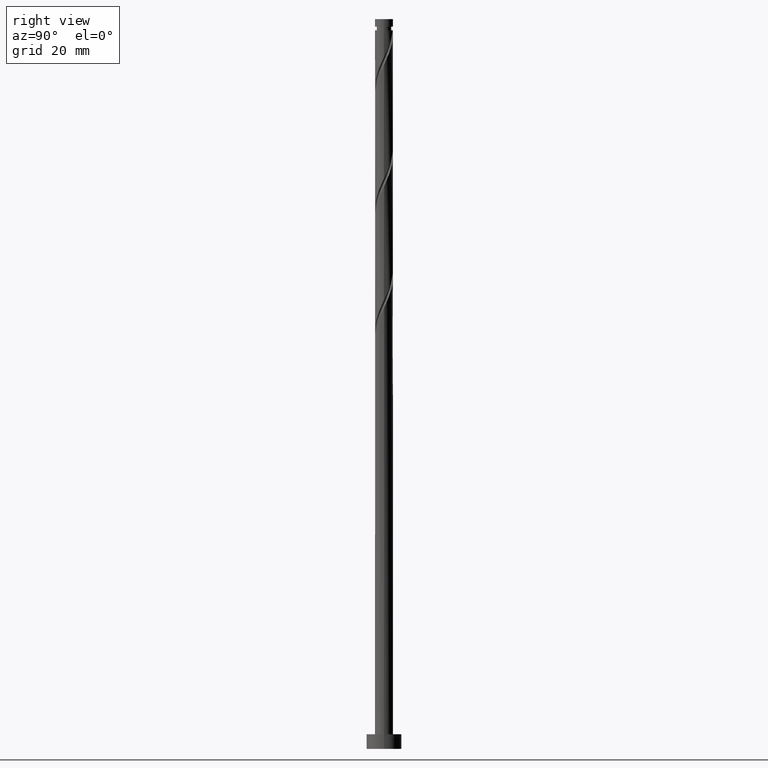
[diagram: clean part render]
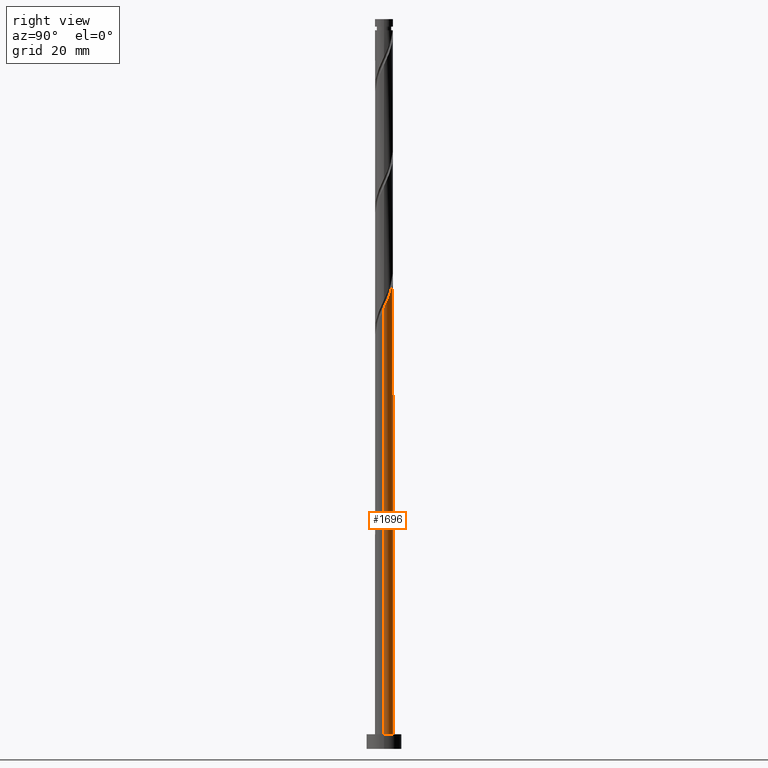
[diagram: same view with one face highlighted and labeled with its STEP entity id]
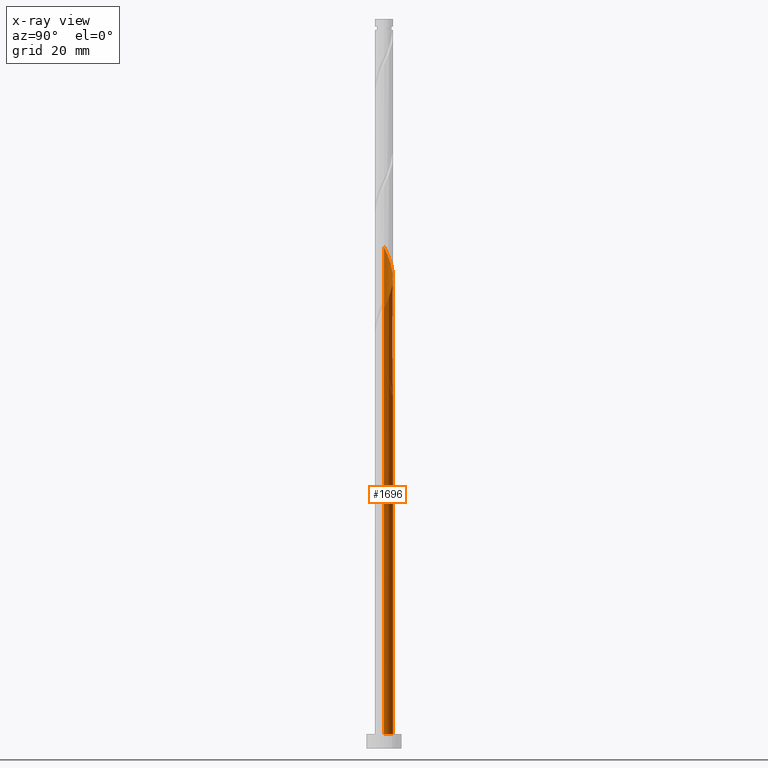
[diagram: x-ray of the same camera — body ghosted, the highlighted face saturated]
A machine part, right view. The second image highlights one B-rep face of the part: STEP entity #1696.
The next image is the same camera in x-ray: the body ghosted, the highlighted face saturated — about 0% of this face is hidden behind the body in this view.
In plain terms, the highlighted cylindrical surface (edge-blend (fillet) strip) has radius 3.1 mm, axis along (-0, -0, -1).
Its self-contained STEP definition (entity closure, byte-faithful):
#15 = EDGE_CURVE ( 'NONE', #1028, #1313, #1448, .T. ) ;
#47 = VECTOR ( 'NONE', #672, 1000.000000000000000 ) ;
#57 = FACE_OUTER_BOUND ( 'NONE', #1245, .T. ) ;
#63 = EDGE_CURVE ( 'NONE', #1028, #953, #497, .T. ) ;
#85 = ORIENTED_EDGE ( 'NONE', *, *, #63, .F. ) ;
#86 = CARTESIAN_POINT ( 'NONE',  ( -2.476317086136644807, 1.864900450133398113, 167.6549799938772765 ) ) ;
#91 = ORIENTED_EDGE ( 'NONE', *, *, #15, .T. ) ;
#93 = CARTESIAN_POINT ( 'NONE',  ( 3.100000000000005418, 1.600285423061656395E-15, 151.1026991436264382 ) ) ;
#102 = CARTESIAN_POINT ( 'NONE',  ( -1.666242669196358106, 2.641082819833930007, 123.5844671733644304 ) ) ;
#111 = AXIS2_PLACEMENT_3D ( 'NONE', #1374, #509, #226 ) ;
#122 = CARTESIAN_POINT ( 'NONE',  ( -0.1280745435953560274, 3.097353210611092145, 122.7831851220824149 ) ) ;
#133 = CARTESIAN_POINT ( 'NONE',  ( -1.227034829342569688, 2.871596876557147127, 125.1870312759285895 ) ) ;
#140 = AXIS2_PLACEMENT_3D ( 'NONE', #1662, #969, #1532 ) ;
#153 = CARTESIAN_POINT ( 'NONE',  ( -2.822669712321746793, 1.335746528729902183, 129.9947235836208677 ) ) ;
#166 = CARTESIAN_POINT ( 'NONE',  ( -3.100000000000004974, 0.2518949594648343115, 171.3963317396114405 ) ) ;
#172 = EDGE_CURVE ( 'NONE', #173, #673, #258, .T. ) ;
#173 = VERTEX_POINT ( 'NONE', #992 ) ;
#177 = CARTESIAN_POINT ( 'NONE',  ( 3.100000000000000089, 3.796405077356794918E-16, 250.0000000000000000 ) ) ;
#226 = DIRECTION ( 'NONE',  ( -1.000000000000000000, 0.000000000000000000, 0.000000000000000000 ) ) ;
#228 = CARTESIAN_POINT ( 'NONE',  ( -1.958059922082859172, 2.403331300826604178, 166.0524158913132169 ) ) ;
#235 = CARTESIAN_POINT ( 'NONE',  ( -0.9857721960353346136, 2.963095724305278011, 121.9819030708003567 ) ) ;
#239 = CARTESIAN_POINT ( 'NONE',  ( 1.552816185334434218, 2.683050855754219199, 158.0395953784926633 ) ) ;
#258 = CIRCLE ( 'NONE', #140, 3.100000000000000089 ) ;
#287 = CARTESIAN_POINT ( 'NONE',  ( -3.090207698699929395, 0.2462039376120597756, 132.3985697374670281 ) ) ;
#306 = EDGE_CURVE ( 'NONE', #1571, #1313, #438, .T. ) ;
#332 = CARTESIAN_POINT ( 'NONE',  ( 2.149790266979326070, 2.233473037222744040, 156.4370312759285753 ) ) ;
#337 = CYLINDRICAL_SURFACE ( 'NONE', #111, 3.100000000000000089 ) ;
#361 = ORIENTED_EDGE ( 'NONE', *, *, #306, .F. ) ;
#363 = CARTESIAN_POINT ( 'NONE',  ( -3.099999999999999201, 3.260394600256485574E-15, 132.9252095620768159 ) ) ;
#371 = VERTEX_POINT ( 'NONE', #1414 ) ;
#373 = CARTESIAN_POINT ( 'NONE',  ( -3.100000000000000089, 0.000000000000000000, 250.0000000000000000 ) ) ;
#380 = CARTESIAN_POINT ( 'NONE',  ( -3.100000000000005418, -1.057384854303355899E-14, 130.2693658102931238 ) ) ;
#385 = CARTESIAN_POINT ( 'NONE',  ( -0.2480122259768767212, 3.112904275694731826, 162.0460056349029117 ) ) ;
#402 = CARTESIAN_POINT ( 'NONE',  ( -1.326007432615846193, 2.802089272069603343, 164.4498517887490152 ) ) ;
#413 = CARTESIAN_POINT ( 'NONE',  ( -1.666242669196358106, 2.641082819833930007, 165.2511338400310876 ) ) ;
#432 = ORIENTED_EDGE ( 'NONE', *, *, #925, .F. ) ;
#438 =( BOUNDED_CURVE ( )  B_SPLINE_CURVE ( 2, ( #1012, #1826, #287, #849, #1293, #153, #595, #719, #875, #1287, #737, #133, #1427, #709, #122, #585, #1706 ),
 .UNSPECIFIED., .F., .T. ) 
 B_SPLINE_CURVE_WITH_KNOTS ( ( 3, 2, 2, 2, 2, 2, 2, 2, 3 ),
 ( 0.9295271625973833274, 0.9326923076923077094, 0.9423076923076922906, 0.9519230769230768718, 0.9615384615384615641, 0.9711538461538461453, 0.9807692307692307265, 0.9903846153846154188, 1.000000000000000000 ),
 .UNSPECIFIED. ) 
 CURVE ( )  GEOMETRIC_REPRESENTATION_ITEM ( )  RATIONAL_B_SPLINE_CURVE ( ( 0.9061636035682864021, 0.9069090390690750514, 0.9090909090909315982, 0.9024626128164350281, 0.9090909090909315982, 0.9024626128164350281, 0.9090909090909315982, 0.9024626128164350281, 0.9090909090909315982, 0.9024626128164350281, 0.9090909090909315982, 0.9024626128164350281, 0.9090909090909315982, 0.9024626128164350281, 0.9090909090909315982, 0.9024626128164350281, 0.9090909090909315982 ) ) 
 REPRESENTATION_ITEM ( '' )  );
#447 = CARTESIAN_POINT ( 'NONE',  ( -2.850659702190538436, 1.218088363915763805, 169.2575440964413644 ) ) ;
#477 = CARTESIAN_POINT ( 'NONE',  ( 3.060313128317948994, 0.6214230849569025716, 152.4306210195183269 ) ) ;
#497 =( BOUNDED_CURVE ( )  B_SPLINE_CURVE ( 2, ( #690, #235, #1218, #102, #1350, #1772, #1794, #1228, #679, #507, #813, #528, #380 ),
 .UNSPECIFIED., .F., .T. ) 
 B_SPLINE_CURVE_WITH_KNOTS ( ( 3, 2, 2, 2, 2, 2, 3 ),
 ( 0.000000000000000000, 0.009615384615384581224, 0.01923076923076927347, 0.02884615384615385469, 0.03846153846153843592, 0.04807692307692312816, 0.05452716259738341759 ),
 .UNSPECIFIED. ) 
 CURVE ( )  GEOMETRIC_REPRESENTATION_ITEM ( )  RATIONAL_B_SPLINE_CURVE ( ( 0.9090909090909391477, 0.9024626128164425776, 0.9090909090909391477, 0.9024626128164425776, 0.9090909090909391477, 0.9024626128164425776, 0.9090909090909391477, 0.9024626128164425776, 0.9090909090909391477, 0.9024626128164425776, 0.9090909090909391477, 0.9046444828382991243, 0.9061636035682940626 ) ) 
 REPRESENTATION_ITEM ( '' )  );
#501 = CARTESIAN_POINT ( 'NONE',  ( 3.100000000000005418, 1.600285423061656395E-15, 151.1026991436264098 ) ) ;
#507 = CARTESIAN_POINT ( 'NONE',  ( -2.998562407077148162, 0.8719556093840096223, 128.3921594810567797 ) ) ;
#509 = DIRECTION ( 'NONE',  ( -0.000000000000000000, -0.000000000000000000, -1.000000000000000000 ) ) ;
#528 = CARTESIAN_POINT ( 'NONE',  ( -3.100000000000004974, 0.2518949594648369761, 129.7296650729447833 ) ) ;
#531 = CARTESIAN_POINT ( 'NONE',  ( 1.227034829342573241, 2.871596876557151123, 158.8408774297747073 ) ) ;
#536 = VECTOR ( 'NONE', #755, 1000.000000000000000 ) ;
#552 = CARTESIAN_POINT ( 'NONE',  ( -0.9857721960353346136, 2.963095724305278011, 163.6485697374670281 ) ) ;
#585 = CARTESIAN_POINT ( 'NONE',  ( 0.2480122259768786641, 3.112904275694726053, 121.9819030708003851 ) ) ;
#595 = CARTESIAN_POINT ( 'NONE',  ( -2.621826352477049316, 1.654093884112051160, 129.1934415323388237 ) ) ;
#599 = CARTESIAN_POINT ( 'NONE',  ( -3.100000000000005418, -1.057384854303356057E-14, 130.2693658102931238 ) ) ;
#643 = EDGE_CURVE ( 'NONE', #371, #1571, #1441, .T. ) ;
#646 = CARTESIAN_POINT ( 'NONE',  ( -3.100000000000000089, 0.000000000000000000, 5.000000000000000000 ) ) ;
#651 = VECTOR ( 'NONE', #863, 1000.000000000000000 ) ;
#672 = DIRECTION ( 'NONE',  ( -0.000000000000000000, -0.000000000000000000, -1.000000000000000000 ) ) ;
#673 = VERTEX_POINT ( 'NONE', #646 ) ;
#679 = CARTESIAN_POINT ( 'NONE',  ( -2.850659702190538436, 1.218088363915763805, 127.5908774297747357 ) ) ;
#690 = CARTESIAN_POINT ( 'NONE',  ( -0.6168922110061056951, 3.038000000000004697, 121.1806210195182985 ) ) ;
#709 = CARTESIAN_POINT ( 'NONE',  ( -0.5041613131675906079, 3.081802145527458681, 123.5844671733644873 ) ) ;
#719 = CARTESIAN_POINT ( 'NONE',  ( -2.420982992632351838, 1.972441239494199250, 128.3921594810567797 ) ) ;
#737 = CARTESIAN_POINT ( 'NONE',  ( -1.552816185334429777, 2.683050855754215203, 125.9883133272106335 ) ) ;
#741 = CARTESIAN_POINT ( 'NONE',  ( -3.100000000000000089, 0.000000000000000000, 250.0000000000000000 ) ) ;
#755 = DIRECTION ( 'NONE',  ( -0.000000000000000000, -0.000000000000000000, -1.000000000000000000 ) ) ;
#770 = LINE ( 'NONE', #177, #536 ) ;
#794 = CARTESIAN_POINT ( 'NONE',  ( 2.420982992632358055, 1.972441239494200138, 155.6357492246464744 ) ) ;
#800 = DIRECTION ( 'NONE',  ( -1.988056716786824495E-29, -3.357529308342209987E-14, -1.000000000000000000 ) ) ;
#806 = CARTESIAN_POINT ( 'NONE',  ( -2.249877174969360460, 2.165579781819277905, 166.8536979425952325 ) ) ;
#813 = CARTESIAN_POINT ( 'NONE',  ( -3.059332338079534530, 0.5004854095583979312, 129.1934415323387952 ) ) ;
#849 = CARTESIAN_POINT ( 'NONE',  ( -3.060313128317944109, 0.6214230849569030157, 131.5972876861850125 ) ) ;
#863 = DIRECTION ( 'NONE',  ( -0.000000000000000000, -0.000000000000000000, -1.000000000000000000 ) ) ;
#875 = CARTESIAN_POINT ( 'NONE',  ( -2.149790266979321185, 2.233473037222740931, 127.5908774297747073 ) ) ;
#891 = ORIENTED_EDGE ( 'NONE', *, *, #172, .T. ) ;
#901 = ORIENTED_EDGE ( 'NONE', *, *, #1003, .T. ) ;
#925 = EDGE_CURVE ( 'NONE', #1669, #371, #1264, .T. ) ;
#953 = VERTEX_POINT ( 'NONE', #599 ) ;
#962 = ORIENTED_EDGE ( 'NONE', *, *, #1641, .F. ) ;
#969 = DIRECTION ( 'NONE',  ( 0.000000000000000000, 0.000000000000000000, 1.000000000000000000 ) ) ;
#978 = AXIS2_PLACEMENT_3D ( 'NONE', #1783, #800, #1372 ) ;
#992 = CARTESIAN_POINT ( 'NONE',  ( 3.100000000000000089, 3.796405077356794918E-16, 5.000000000000000000 ) ) ;
#1003 = EDGE_CURVE ( 'NONE', #1669, #173, #770, .T. ) ;
#1012 = CARTESIAN_POINT ( 'NONE',  ( -3.099999999999999201, 3.260394600256485574E-15, 132.9252095620768159 ) ) ;
#1028 = VERTEX_POINT ( 'NONE', #1330 ) ;
#1044 = CARTESIAN_POINT ( 'NONE',  ( 2.941491420319851446, 0.9785848068434013225, 153.2319030708003424 ) ) ;
#1072 = CARTESIAN_POINT ( 'NONE',  ( 3.100000000000004974, 0.1232967040439874457, 151.3668700592594121 ) ) ;
#1125 = CARTESIAN_POINT ( 'NONE',  ( -0.6168922110061059172, 3.038000000000004697, 162.8472876861849556 ) ) ;
#1176 = CARTESIAN_POINT ( 'NONE',  ( -2.998562407077148162, 0.8719556093840096223, 170.0588261477234369 ) ) ;
#1194 = CARTESIAN_POINT ( 'NONE',  ( -3.100000000000005418, 6.715216401445643760E-15, 171.9360324769597241 ) ) ;
#1218 = CARTESIAN_POINT ( 'NONE',  ( -1.326007432615846193, 2.802089272069603343, 122.7831851220824149 ) ) ;
#1220 = LINE ( 'NONE', #373, #47 ) ;
#1228 = CARTESIAN_POINT ( 'NONE',  ( -2.702756997303928266, 1.564221118447517433, 126.7895953784926633 ) ) ;
#1245 = EDGE_LOOP ( 'NONE', ( #432, #901, #891, #962, #85, #91, #361, #1645 ) ) ;
#1264 =( BOUNDED_CURVE ( )  B_SPLINE_CURVE ( 2, ( #501, #1072, #1739, #477, #1044, #1603, #1626, #794, #332, #1364, #239, #531, #1543, #1397, #1672, #385, #1125, #552, #402, #413, #228, #806, #86, #1279, #447, #1176, #1596, #166, #1194 ),
 .UNSPECIFIED., .F., .T. ) 
 B_SPLINE_CURVE_WITH_KNOTS ( ( 3, 2, 2, 2, 2, 2, 2, 2, 2, 2, 2, 2, 2, 2, 3 ),
 ( 0.1795271625973834662, 0.1826923076923077094, 0.1923076923076922906, 0.2019230769230768718, 0.2115384615384615641, 0.2211538461538461453, 0.2307692307692307265, 0.2403846153846154188, 0.2500000000000000000, 0.2596153846153845812, 0.2692307692307692735, 0.2788461538461538547, 0.2884615384615384359, 0.2980769230769231282, 0.3045271625973834939 ),
 .UNSPECIFIED. ) 
 CURVE ( )  GEOMETRIC_REPRESENTATION_ITEM ( )  RATIONAL_B_SPLINE_CURVE ( ( 0.9061636035682940626, 0.9069090390690827119, 0.9090909090909391477, 0.9024626128164425776, 0.9090909090909391477, 0.9024626128164425776, 0.9090909090909391477, 0.9024626128164425776, 0.9090909090909391477, 0.9024626128164425776, 0.9090909090909391477, 0.9024626128164425776, 0.9090909090909391477, 0.9024626128164425776, 0.9090909090909391477, 0.9024626128164425776, 0.9090909090909391477, 0.9024626128164425776, 0.9090909090909391477, 0.9024626128164425776, 0.9090909090909391477, 0.9024626128164425776, 0.9090909090909391477, 0.9024626128164425776, 0.9090909090909391477, 0.9024626128164425776, 0.9090909090909391477, 0.9046444828382991243, 0.9061636035682940626 ) ) 
 REPRESENTATION_ITEM ( '' )  );
#1279 = CARTESIAN_POINT ( 'NONE',  ( -2.702756997303928266, 1.564221118447517433, 168.4562620451593489 ) ) ;
#1287 = CARTESIAN_POINT ( 'NONE',  ( -1.878597541326290532, 2.494504834951285055, 126.7895953784926917 ) ) ;
#1293 = CARTESIAN_POINT ( 'NONE',  ( -2.941491420319844785, 0.9785848068434026548, 130.7960056349029401 ) ) ;
#1313 = VERTEX_POINT ( 'NONE', #1520 ) ;
#1330 = CARTESIAN_POINT ( 'NONE',  ( -0.6168922110061056951, 3.038000000000004253, 121.1806210195182985 ) ) ;
#1350 = CARTESIAN_POINT ( 'NONE',  ( -1.958059922082859172, 2.403331300826604178, 124.3857492246465313 ) ) ;
#1364 = CARTESIAN_POINT ( 'NONE',  ( 1.878597541326295861, 2.494504834951285943, 157.2383133272105908 ) ) ;
#1372 = DIRECTION ( 'NONE',  ( 0.000000000000000000, 1.000000000000000000, -3.581364595565020915E-14 ) ) ;
#1374 = CARTESIAN_POINT ( 'NONE',  ( 0.000000000000000000, 0.000000000000000000, 250.0000000000000000 ) ) ;
#1397 = CARTESIAN_POINT ( 'NONE',  ( 0.5041613131675937165, 3.081802145527464010, 160.4434415323388237 ) ) ;
#1414 = CARTESIAN_POINT ( 'NONE',  ( -3.100000000000005418, 6.715216401445643760E-15, 171.9360324769597526 ) ) ;
#1427 = CARTESIAN_POINT ( 'NONE',  ( -0.8655980712550804812, 2.976699511042302237, 124.3857492246465171 ) ) ;
#1441 = LINE ( 'NONE', #741, #651 ) ;
#1448 = CIRCLE ( 'NONE', #978, 3.100000000000000089 ) ;
#1520 = CARTESIAN_POINT ( 'NONE',  ( 0.6168922110061068054, 3.037999999999998924, 121.1806210195182985 ) ) ;
#1532 = DIRECTION ( 'NONE',  ( 1.000000000000000000, 0.000000000000000000, 0.000000000000000000 ) ) ;
#1543 = CARTESIAN_POINT ( 'NONE',  ( 0.8655980712550847000, 2.976699511042306234, 159.6421594810568081 ) ) ;
#1571 = VERTEX_POINT ( 'NONE', #363 ) ;
#1596 = CARTESIAN_POINT ( 'NONE',  ( -3.059332338079534530, 0.5004854095583979312, 170.8601081990055377 ) ) ;
#1603 = CARTESIAN_POINT ( 'NONE',  ( 2.822669712321752122, 1.335746528729902183, 154.0331851220824717 ) ) ;
#1626 = CARTESIAN_POINT ( 'NONE',  ( 2.621826352477054645, 1.654093884112052937, 154.8344671733645157 ) ) ;
#1641 = EDGE_CURVE ( 'NONE', #953, #673, #1220, .T. ) ;
#1645 = ORIENTED_EDGE ( 'NONE', *, *, #643, .F. ) ;
#1662 = CARTESIAN_POINT ( 'NONE',  ( 0.000000000000000000, 0.000000000000000000, 5.000000000000000000 ) ) ;
#1669 = VERTEX_POINT ( 'NONE', #93 ) ;
#1672 = CARTESIAN_POINT ( 'NONE',  ( 0.1280745435953598022, 3.097353210611097918, 161.2447235836208108 ) ) ;
#1696 = ADVANCED_FACE ( 'NONE', ( #57 ), #337, .T. ) ;
#1706 = CARTESIAN_POINT ( 'NONE',  ( 0.6168922110061069164, 3.037999999999998924, 121.1806210195182842 ) ) ;
#1739 = CARTESIAN_POINT ( 'NONE',  ( 3.090207698699935612, 0.2462039376120576106, 151.6293389682362829 ) ) ;
#1772 = CARTESIAN_POINT ( 'NONE',  ( -2.249877174969360460, 2.165579781819277905, 125.1870312759285611 ) ) ;
#1783 = CARTESIAN_POINT ( 'NONE',  ( 0.000000000000000000, 0.000000000000000000, 121.1806210195183979 ) ) ;
#1794 = CARTESIAN_POINT ( 'NONE',  ( -2.476317086136644807, 1.864900450133398113, 125.9883133272106335 ) ) ;
#1826 = CARTESIAN_POINT ( 'NONE',  ( -3.099999999999999645, 0.1232967040439837680, 132.6610386464438704 ) ) ;